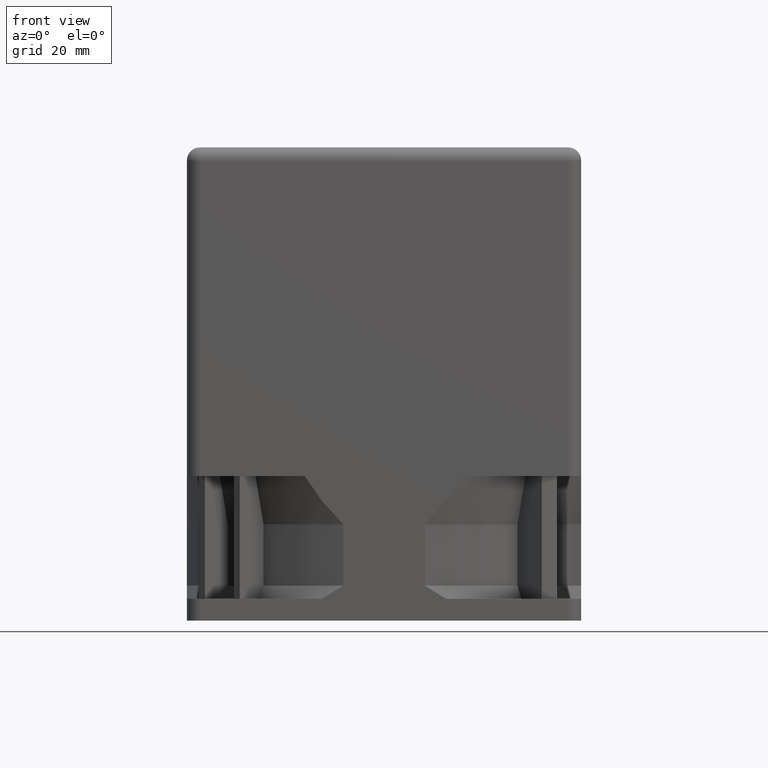
[diagram: clean part render]
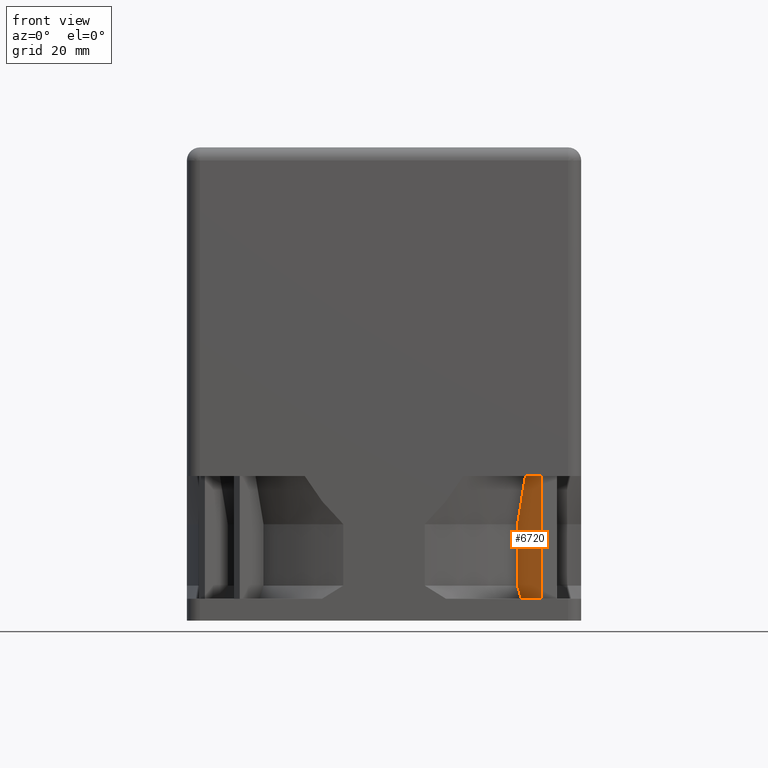
[diagram: same view with one face highlighted and labeled with its STEP entity id]
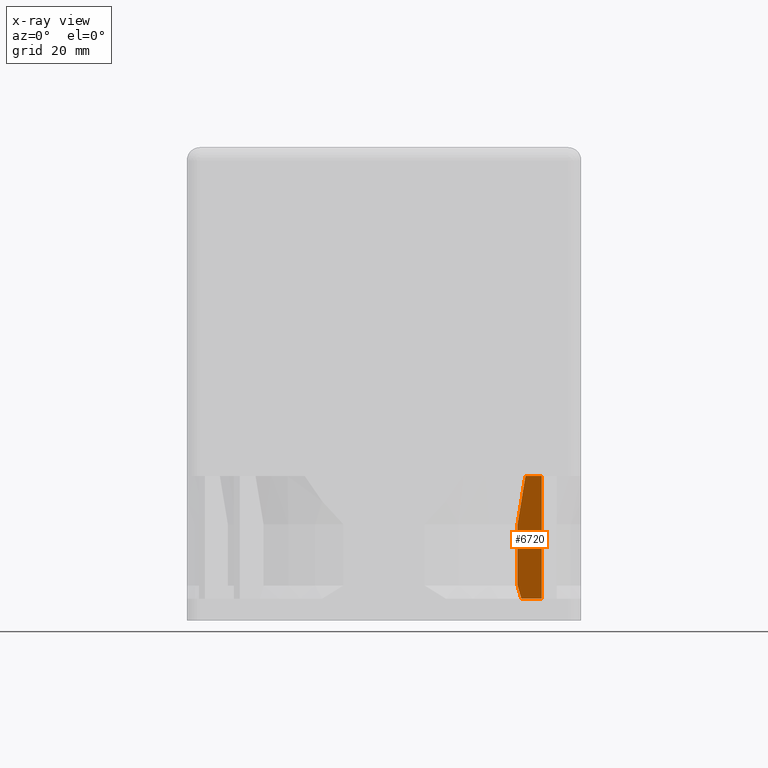
[diagram: x-ray of the same camera — body ghosted, the highlighted face saturated]
A machine part, front view. The second image highlights one B-rep face of the part: STEP entity #6720.
The next image is the same camera in x-ray: the body ghosted, the highlighted face saturated — about 0% of this face is hidden behind the body in this view.
In plain terms, the highlighted planar face has unit normal (0.7071, 0.7071, 0).
Its self-contained STEP definition (entity closure, byte-faithful):
#50 = VERTEX_POINT ( 'NONE', #4449 ) ;
#85 = DIRECTION ( 'NONE',  ( -0.7071067811866118547, 0.7071067811864832908, -2.453269466693621721E-18 ) ) ;
#184 = VECTOR ( 'NONE', #6472, 1000.000000000000000 ) ;
#289 = CARTESIAN_POINT ( 'NONE',  ( 36.00152003828166869, -39.91025140616002886, -5.000000000000000000 ) ) ;
#442 = CARTESIAN_POINT ( 'NONE',  ( 30.47720278247601655, -34.38593415035537504, 1.125196063628905059E-16 ) ) ;
#576 = ORIENTED_EDGE ( 'NONE', *, *, #2615, .F. ) ;
#585 = CARTESIAN_POINT ( 'NONE',  ( 31.68217316135764960, -35.59090452923680203, -8.666683660405968936 ) ) ;
#1235 = LINE ( 'NONE', #1273, #6252 ) ;
#1273 = CARTESIAN_POINT ( 'NONE',  ( 29.36051069579354689, -33.26924206367311143, -32.99999999999999289 ) ) ;
#1404 = DIRECTION ( 'NONE',  ( -0.000000000000000000, -0.000000000000000000, 1.000000000000000000 ) ) ;
#1480 = CARTESIAN_POINT ( 'NONE',  ( 36.00152003828166869, -39.91025140616002886, -38.00199999999999534 ) ) ;
#1482 = CARTESIAN_POINT ( 'NONE',  ( 32.28458077726807574, -36.19331214514711093, -4.999999999999996447 ) ) ;
#1733 = AXIS2_PLACEMENT_3D ( 'NONE', #2272, #7820, #1793 ) ;
#1793 = DIRECTION ( 'NONE',  ( -0.7071067811866118547, 0.7071067811864832908, 0.000000000000000000 ) ) ;
#1801 = CARTESIAN_POINT ( 'NONE',  ( 30.47720278247602366, -34.38593415035538214, -29.99999999999999645 ) ) ;
#1976 = CARTESIAN_POINT ( 'NONE',  ( 29.36051069579354689, -33.26924206367311143, -5.000000000000000000 ) ) ;
#2128 = EDGE_CURVE ( 'NONE', #4283, #4958, #7603, .T. ) ;
#2233 = LINE ( 'NONE', #442, #184 ) ;
#2272 = CARTESIAN_POINT ( 'NONE',  ( 29.36051069579354689, -33.26924206367311143, -38.00199999999999534 ) ) ;
#2572 = DIRECTION ( 'NONE',  ( -0.7071067811866118547, 0.7071067811864832908, -0.000000000000000000 ) ) ;
#2615 = EDGE_CURVE ( 'NONE', #4017, #4283, #2233, .T. ) ;
#2930 = FACE_OUTER_BOUND ( 'NONE', #3757, .T. ) ;
#3501 = ORIENTED_EDGE ( 'NONE', *, *, #3861, .T. ) ;
#3545 = CARTESIAN_POINT ( 'NONE',  ( 30.47720278247602366, -34.38593415035538214, -16.00000000000000000 ) ) ;
#3632 = CARTESIAN_POINT ( 'NONE',  ( 32.28458077726807574, -36.19331214514711093, -4.999999999999996447 ) ) ;
#3757 = EDGE_LOOP ( 'NONE', ( #6215, #3501, #7006, #5713, #576, #4572 ) ) ;
#3861 = EDGE_CURVE ( 'NONE', #7618, #6092, #6361, .T. ) ;
#4017 = VERTEX_POINT ( 'NONE', #7107 ) ;
#4283 = VERTEX_POINT ( 'NONE', #5909 ) ;
#4449 = CARTESIAN_POINT ( 'NONE',  ( 31.33909402457619464, -35.24782539245538970, -32.99999999999999289 ) ) ;
#4572 = ORIENTED_EDGE ( 'NONE', *, *, #5181, .F. ) ;
#4826 = CARTESIAN_POINT ( 'NONE',  ( 31.33909402457619464, -35.24782539245538970, -32.99999999999999289 ) ) ;
#4886 = CARTESIAN_POINT ( 'NONE',  ( 36.00152003828166869, -39.91025140616002886, -32.99999999999999289 ) ) ;
#4958 = VERTEX_POINT ( 'NONE', #1482 ) ;
#5181 = EDGE_CURVE ( 'NONE', #50, #4017, #6443, .T. ) ;
#5329 = CARTESIAN_POINT ( 'NONE',  ( 30.76451141304087500, -34.67324278092018375, -30.99999336335969602 ) ) ;
#5643 = EDGE_CURVE ( 'NONE', #7618, #50, #1235, .T. ) ;
#5713 = ORIENTED_EDGE ( 'NONE', *, *, #2128, .F. ) ;
#5725 = VECTOR ( 'NONE', #1404, 1000.000000000000000 ) ;
#5740 = LINE ( 'NONE', #1976, #7502 ) ;
#5909 = CARTESIAN_POINT ( 'NONE',  ( 30.47720278247602366, -34.38593415035538214, -16.00000000000000000 ) ) ;
#5928 = CARTESIAN_POINT ( 'NONE',  ( 31.05180819496255396, -34.96053956284181652, -31.99999353533891622 ) ) ;
#5997 = PLANE ( 'NONE',  #1733 ) ;
#6092 = VERTEX_POINT ( 'NONE', #289 ) ;
#6215 = ORIENTED_EDGE ( 'NONE', *, *, #5643, .F. ) ;
#6252 = VECTOR ( 'NONE', #85, 1000.000000000000114 ) ;
#6361 = LINE ( 'NONE', #1480, #5725 ) ;
#6443 = B_SPLINE_CURVE_WITH_KNOTS ( 'NONE', 3,
 ( #4826, #5928, #5329, #1801 ),
 .UNSPECIFIED., .F., .F.,
 ( 4, 4 ),
 ( 2.158762757087737563E-07, 0.003238380947178929811 ),
 .UNSPECIFIED. ) ;
#6472 = DIRECTION ( 'NONE',  ( -3.469446951953614189E-18, -0.000000000000000000, 1.000000000000000000 ) ) ;
#6720 = ADVANCED_FACE ( 'NONE', ( #2930 ), #5997, .F. ) ;
#7006 = ORIENTED_EDGE ( 'NONE', *, *, #7193, .T. ) ;
#7107 = CARTESIAN_POINT ( 'NONE',  ( 30.47720278247602366, -34.38593415035538214, -29.99999999999999645 ) ) ;
#7193 = EDGE_CURVE ( 'NONE', #6092, #4958, #5740, .T. ) ;
#7240 = CARTESIAN_POINT ( 'NONE',  ( 31.07971671104210287, -34.98844807892135123, -12.33335127552834010 ) ) ;
#7502 = VECTOR ( 'NONE', #2572, 1000.000000000000114 ) ;
#7603 = B_SPLINE_CURVE_WITH_KNOTS ( 'NONE', 3,
 ( #3545, #7240, #585, #3632 ),
 .UNSPECIFIED., .F., .F.,
 ( 4, 4 ),
 ( 2.053293894996170437E-07, 0.01129326649242744403 ),
 .UNSPECIFIED. ) ;
#7618 = VERTEX_POINT ( 'NONE', #4886 ) ;
#7820 = DIRECTION ( 'NONE',  ( 0.7071067811864832908, 0.7071067811866118547, 0.000000000000000000 ) ) ;